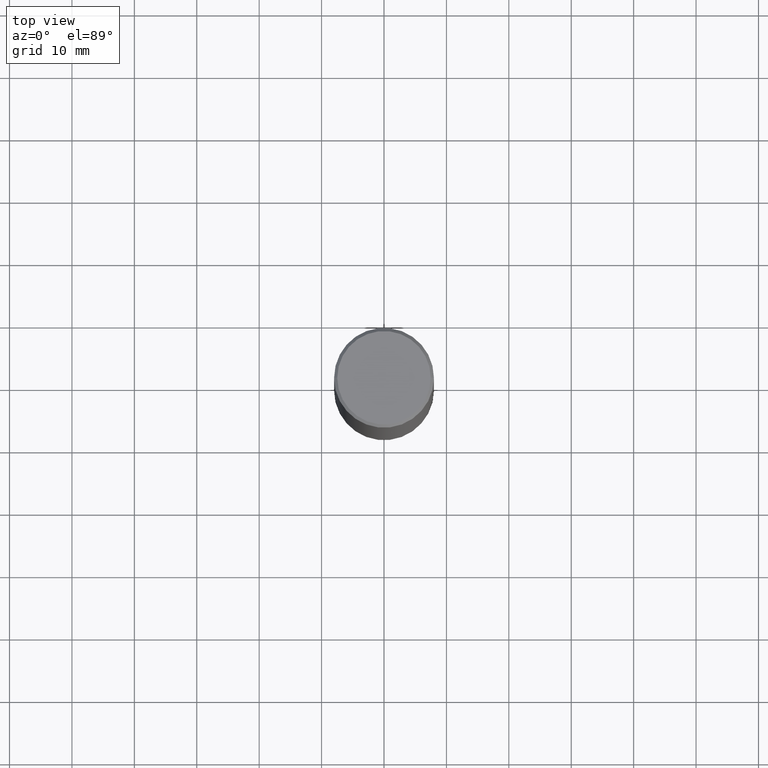
[diagram: clean part render]
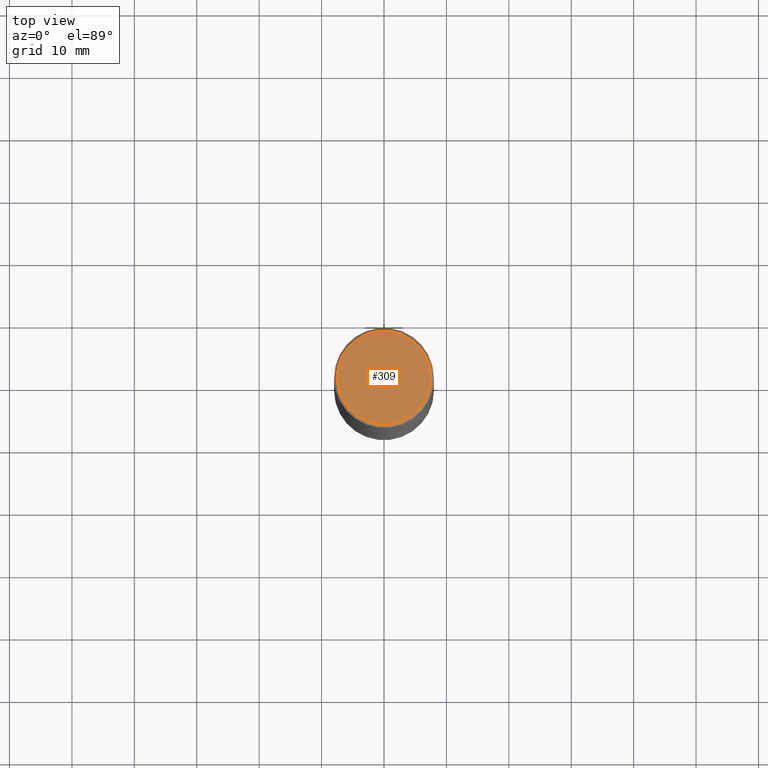
[diagram: same view with one face highlighted and labeled with its STEP entity id]
A machine part, top view. The second image highlights one B-rep face of the part: STEP entity #309.
In plain terms, the highlighted planar face has unit normal (0, -0, -1).
Its self-contained STEP definition (entity closure, byte-faithful):
#1 = DIRECTION ( 'NONE',  ( -2.445468806185136597E-29, 3.491481338843145583E-15, 1.000000000000000000 ) ) ;
#18 = AXIS2_PLACEMENT_3D ( 'NONE', #241, #301, #218 ) ;
#24 = EDGE_CURVE ( 'NONE', #232, #320, #361, .T. ) ;
#32 = DIRECTION ( 'NONE',  ( 1.000000000000000000, -6.982962677686267499E-15, 4.876053491004739391E-29 ) ) ;
#41 = ORIENTED_EDGE ( 'NONE', *, *, #240, .T. ) ;
#45 = AXIS2_PLACEMENT_3D ( 'NONE', #317, #1, #32 ) ;
#60 = FACE_OUTER_BOUND ( 'NONE', #100, .T. ) ;
#67 = ORIENTED_EDGE ( 'NONE', *, *, #24, .T. ) ;
#100 = EDGE_LOOP ( 'NONE', ( #41, #67 ) ) ;
#169 = CIRCLE ( 'NONE', #45, 0.2949499999999997124 ) ;
#171 = PLANE ( 'NONE',  #279 ) ;
#193 = DIRECTION ( 'NONE',  ( -1.000000000000000000, 6.982962677686265922E-15, -4.876176775795935793E-29 ) ) ;
#218 = DIRECTION ( 'NONE',  ( 1.000000000000000000, -6.982962677686267499E-15, 4.876053491004739391E-29 ) ) ;
#222 = CARTESIAN_POINT ( 'NONE',  ( 0.2949499999999997124, -2.127023677808858103E-15, 8.537024980215462707E-18 ) ) ;
#232 = VERTEX_POINT ( 'NONE', #222 ) ;
#240 = EDGE_CURVE ( 'NONE', #320, #232, #169, .T. ) ;
#241 = CARTESIAN_POINT ( 'NONE',  ( -2.087702828670439639E-46, 2.980686340760894400E-32, 8.537024980200822558E-18 ) ) ;
#254 = CARTESIAN_POINT ( 'NONE',  ( -0.2949499999999997124, 2.094539655171993740E-15, 8.537024980186296424E-18 ) ) ;
#279 = AXIS2_PLACEMENT_3D ( 'NONE', #316, #314, #193 ) ;
#301 = DIRECTION ( 'NONE',  ( -2.445468806185136597E-29, 3.491481338843145583E-15, 1.000000000000000000 ) ) ;
#309 = ADVANCED_FACE ( 'NONE', ( #60 ), #171, .F. ) ;
#314 = DIRECTION ( 'NONE',  ( 2.438088387897960049E-29, -3.491481338843145188E-15, -1.000000000000000000 ) ) ;
#316 = CARTESIAN_POINT ( 'NONE',  ( 2.059624841783562091E-15, 0.2949499999999997124, -1.025543908401684366E-15 ) ) ;
#317 = CARTESIAN_POINT ( 'NONE',  ( -2.087702828670439639E-46, 2.980686340760894400E-32, 8.537024980200822558E-18 ) ) ;
#320 = VERTEX_POINT ( 'NONE', #254 ) ;
#361 = CIRCLE ( 'NONE', #18, 0.2949499999999997124 ) ;